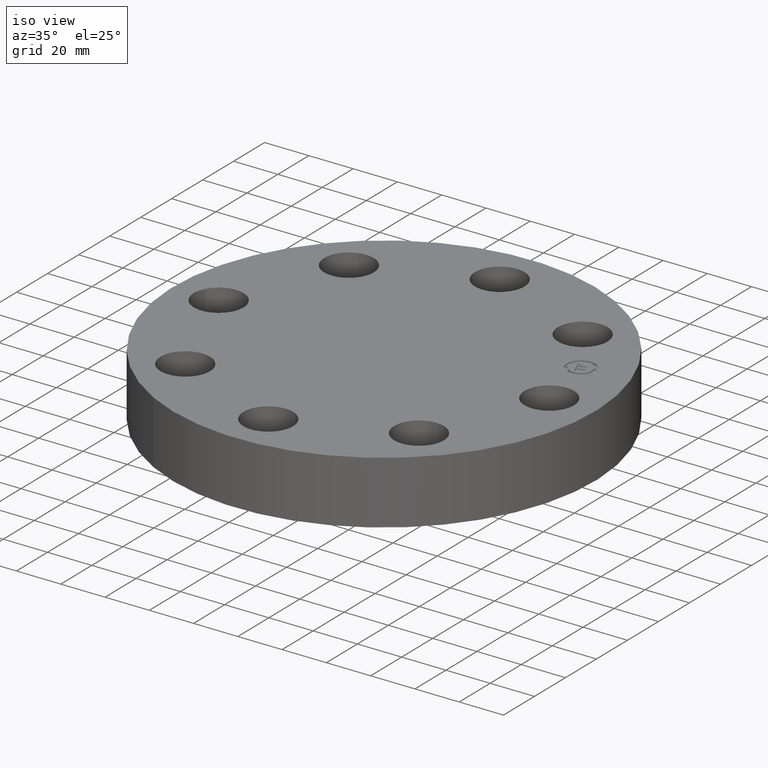
[diagram: clean part render]
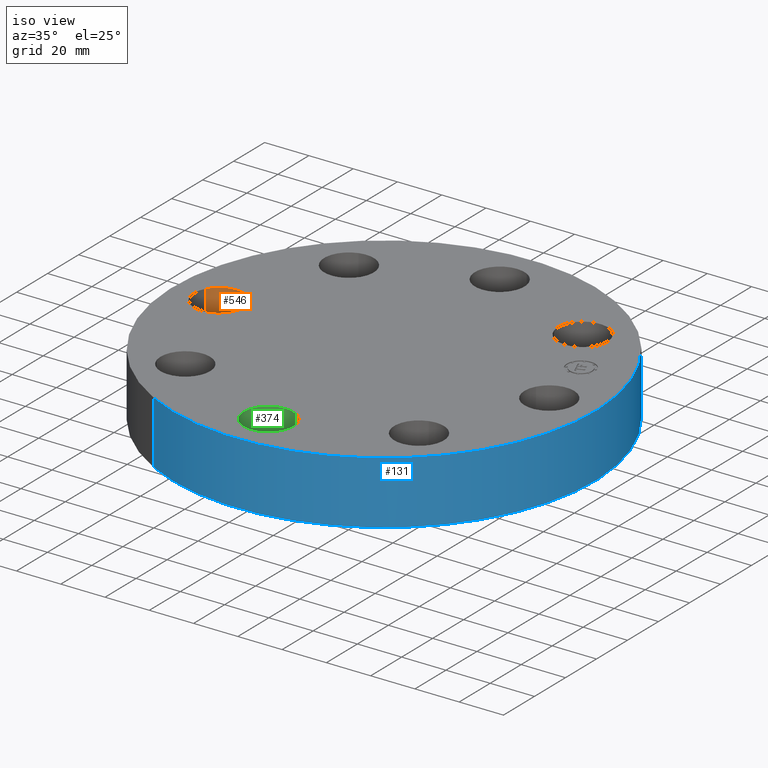
[diagram: same view with three faces highlighted in distinct colors, each labeled with its STEP entity id]
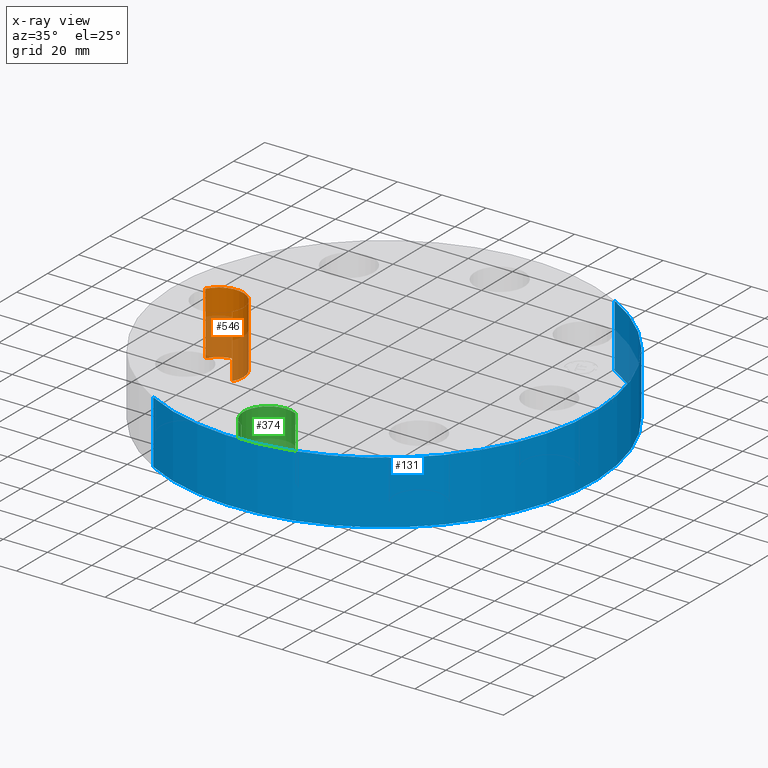
[diagram: x-ray of the same camera — body ghosted, the three highlighted faces saturated]
A machine part, iso view with three faces highlighted in distinct colors.
The next image is the same camera in x-ray (body ghosted, the three faces saturated) — at least one of them is partly hidden behind the body in this view.
Their STEP definitions:

[orange] entity #546 — the highlighted cylindrical surface (edge-blend (fillet) strip) has radius 11.176 mm, axis along (-0, 0, -1).
#227=AXIS2_PLACEMENT_3D('Circle Axis2P3D',#225,#226,$) ;
#507=AXIS2_PLACEMENT_3D('Cylinder Axis2P3D',#504,#505,#506) ;
#537=AXIS2_PLACEMENT_3D('Circle Axis2P3D',#535,#536,$) ;
#220=CARTESIAN_POINT('Vertex',(-2.55386367278,-0.210947236987,0.)) ;
#222=CARTESIAN_POINT('Vertex',(-3.32613632725,0.210947236987,0.)) ;
#225=CARTESIAN_POINT('Axis2P3D Location',(-2.94000000001,-2.44773580232E-016,0.)) ;
#504=CARTESIAN_POINT('Axis2P3D Location',(-2.94000000001,-3.60046158951E-016,1.11606299213)) ;
#509=CARTESIAN_POINT('Line Origine',(-2.55386367278,-0.210947236987,0.560000000002)) ;
#513=CARTESIAN_POINT('Vertex',(-2.55386367278,-0.210947236987,1.12)) ;
#516=CARTESIAN_POINT('Line Origine',(-3.32613632725,0.210947236987,0.560000000002)) ;
#520=CARTESIAN_POINT('Vertex',(-3.32613632725,0.210947236987,1.12)) ;
#535=CARTESIAN_POINT('Axis2P3D Location',(-2.94000000001,-3.60046158951E-016,1.12)) ;
#226=DIRECTION('Axis2P3D Direction',(0.,0.,-0.0393700787402)) ;
#505=DIRECTION('Axis2P3D Direction',(-0.,0.,-0.0393700787402)) ;
#506=DIRECTION('Axis2P3D XDirection',(-0.0345504945626,0.0188750212049,0.)) ;
#510=DIRECTION('Vector Direction',(0.,0.,-0.0393700787402)) ;
#517=DIRECTION('Vector Direction',(0.,0.,-0.0393700787402)) ;
#536=DIRECTION('Axis2P3D Direction',(-0.,0.,-0.0393700787402)) ;
#511=VECTOR('Line Direction',#510,0.0393700787402) ;
#518=VECTOR('Line Direction',#517,0.0393700787402) ;
#541=ORIENTED_EDGE('',*,*,#522,.F.) ;
#542=ORIENTED_EDGE('',*,*,#229,.T.) ;
#543=ORIENTED_EDGE('',*,*,#515,.T.) ;
#544=ORIENTED_EDGE('',*,*,#539,.F.) ;
#546=ADVANCED_FACE('PartBody',(#545),#508,.F.) ;
#228=CIRCLE('generated circle',#227,0.440000000002) ;
#538=CIRCLE('generated circle',#537,0.440000000002) ;
#508=CYLINDRICAL_SURFACE('generated cylinder',#507,0.440000000002) ;
#229=EDGE_CURVE('',#223,#221,#228,.T.) ;
#515=EDGE_CURVE('',#221,#514,#512,.F.) ;
#522=EDGE_CURVE('',#223,#521,#519,.F.) ;
#539=EDGE_CURVE('',#521,#514,#538,.T.) ;
#540=EDGE_LOOP('',(#541,#542,#543,#544)) ;
#545=FACE_OUTER_BOUND('',#540,.T.) ;
#512=LINE('Line',#509,#511) ;
#519=LINE('Line',#516,#518) ;
#221=VERTEX_POINT('',#220) ;
#223=VERTEX_POINT('',#222) ;
#514=VERTEX_POINT('',#513) ;
#521=VERTEX_POINT('',#520) ;

[blue] entity #131 — the highlighted cylindrical surface (partial cylindrical patch) has radius 95.25 mm, axis along (0, 0, -1).
#95=AXIS2_PLACEMENT_3D('Cylinder Axis2P3D',#92,#93,#94) ;
#99=AXIS2_PLACEMENT_3D('Circle Axis2P3D',#97,#98,$) ;
#115=AXIS2_PLACEMENT_3D('Circle Axis2P3D',#113,#114,$) ;
#92=CARTESIAN_POINT('Axis2P3D Location',(0.,0.,0.560000000002)) ;
#97=CARTESIAN_POINT('Axis2P3D Location',(0.,0.,4.19611851827E-016)) ;
#101=CARTESIAN_POINT('Vertex',(1.79784576977,3.2909346071,4.19611851827E-016)) ;
#103=CARTESIAN_POINT('Vertex',(-1.79784576977,-3.2909346071,4.19611851827E-016)) ;
#106=CARTESIAN_POINT('Line Origine',(1.79784576977,3.2909346071,0.560000000002)) ;
#110=CARTESIAN_POINT('Vertex',(1.79784576977,3.2909346071,1.12)) ;
#113=CARTESIAN_POINT('Axis2P3D Location',(0.,0.,1.12)) ;
#117=CARTESIAN_POINT('Vertex',(-1.79784576977,-3.2909346071,1.12)) ;
#120=CARTESIAN_POINT('Line Origine',(-1.79784576977,-3.2909346071,0.560000000002)) ;
#93=DIRECTION('Axis2P3D Direction',(0.,0.,-0.0393700787402)) ;
#94=DIRECTION('Axis2P3D XDirection',(-0.0188750212049,-0.0345504945626,0.)) ;
#98=DIRECTION('Axis2P3D Direction',(0.,0.,-0.0393700787402)) ;
#107=DIRECTION('Vector Direction',(0.,0.,-0.0393700787402)) ;
#114=DIRECTION('Axis2P3D Direction',(0.,0.,-0.0393700787402)) ;
#121=DIRECTION('Vector Direction',(0.,0.,-0.0393700787402)) ;
#108=VECTOR('Line Direction',#107,0.0393700787402) ;
#122=VECTOR('Line Direction',#121,0.0393700787402) ;
#126=ORIENTED_EDGE('',*,*,#105,.F.) ;
#127=ORIENTED_EDGE('',*,*,#112,.T.) ;
#128=ORIENTED_EDGE('',*,*,#119,.T.) ;
#129=ORIENTED_EDGE('',*,*,#124,.F.) ;
#131=ADVANCED_FACE('PartBody',(#130),#96,.T.) ;
#100=CIRCLE('generated circle',#99,3.75000000002) ;
#116=CIRCLE('generated circle',#115,3.75000000002) ;
#96=CYLINDRICAL_SURFACE('generated cylinder',#95,3.75000000002) ;
#105=EDGE_CURVE('',#102,#104,#100,.T.) ;
#112=EDGE_CURVE('',#102,#111,#109,.F.) ;
#119=EDGE_CURVE('',#111,#118,#116,.T.) ;
#124=EDGE_CURVE('',#104,#118,#123,.F.) ;
#125=EDGE_LOOP('',(#126,#127,#128,#129)) ;
#130=FACE_OUTER_BOUND('',#125,.T.) ;
#109=LINE('Line',#106,#108) ;
#123=LINE('Line',#120,#122) ;
#102=VERTEX_POINT('',#101) ;
#104=VERTEX_POINT('',#103) ;
#111=VERTEX_POINT('',#110) ;
#118=VERTEX_POINT('',#117) ;

[green] entity #374 — the highlighted cylindrical surface (edge-blend (fillet) strip) has radius 11.176 mm, axis along (0, -0, -1).
#191=AXIS2_PLACEMENT_3D('Circle Axis2P3D',#189,#190,$) ;
#335=AXIS2_PLACEMENT_3D('Cylinder Axis2P3D',#332,#333,#334) ;
#365=AXIS2_PLACEMENT_3D('Circle Axis2P3D',#363,#364,$) ;
#184=CARTESIAN_POINT('Vertex',(0.210947236987,-2.55386367278,0.)) ;
#186=CARTESIAN_POINT('Vertex',(-0.210947236987,-3.32613632725,0.)) ;
#189=CARTESIAN_POINT('Axis2P3D Location',(-2.79741234551E-016,-2.94000000001,0.)) ;
#332=CARTESIAN_POINT('Axis2P3D Location',(-3.79459389627E-016,-2.94000000001,1.11606299213)) ;
#337=CARTESIAN_POINT('Line Origine',(0.210947236987,-2.55386367278,0.560000000002)) ;
#341=CARTESIAN_POINT('Vertex',(0.210947236987,-2.55386367278,1.12)) ;
#344=CARTESIAN_POINT('Line Origine',(-0.210947236987,-3.32613632725,0.560000000002)) ;
#348=CARTESIAN_POINT('Vertex',(-0.210947236987,-3.32613632725,1.12)) ;
#363=CARTESIAN_POINT('Axis2P3D Location',(-3.79459389627E-016,-2.94000000001,1.12)) ;
#190=DIRECTION('Axis2P3D Direction',(0.,0.,-0.0393700787402)) ;
#333=DIRECTION('Axis2P3D Direction',(0.,-0.,-0.0393700787402)) ;
#334=DIRECTION('Axis2P3D XDirection',(-0.0188750212049,-0.0345504945626,0.)) ;
#338=DIRECTION('Vector Direction',(0.,0.,-0.0393700787402)) ;
#345=DIRECTION('Vector Direction',(0.,0.,-0.0393700787402)) ;
#364=DIRECTION('Axis2P3D Direction',(0.,-0.,-0.0393700787402)) ;
#339=VECTOR('Line Direction',#338,0.0393700787402) ;
#346=VECTOR('Line Direction',#345,0.0393700787402) ;
#369=ORIENTED_EDGE('',*,*,#350,.F.) ;
#370=ORIENTED_EDGE('',*,*,#193,.T.) ;
#371=ORIENTED_EDGE('',*,*,#343,.T.) ;
#372=ORIENTED_EDGE('',*,*,#367,.F.) ;
#374=ADVANCED_FACE('PartBody',(#373),#336,.F.) ;
#192=CIRCLE('generated circle',#191,0.440000000002) ;
#366=CIRCLE('generated circle',#365,0.440000000002) ;
#336=CYLINDRICAL_SURFACE('generated cylinder',#335,0.440000000002) ;
#193=EDGE_CURVE('',#187,#185,#192,.T.) ;
#343=EDGE_CURVE('',#185,#342,#340,.F.) ;
#350=EDGE_CURVE('',#187,#349,#347,.F.) ;
#367=EDGE_CURVE('',#349,#342,#366,.T.) ;
#368=EDGE_LOOP('',(#369,#370,#371,#372)) ;
#373=FACE_OUTER_BOUND('',#368,.T.) ;
#340=LINE('Line',#337,#339) ;
#347=LINE('Line',#344,#346) ;
#185=VERTEX_POINT('',#184) ;
#187=VERTEX_POINT('',#186) ;
#342=VERTEX_POINT('',#341) ;
#349=VERTEX_POINT('',#348) ;